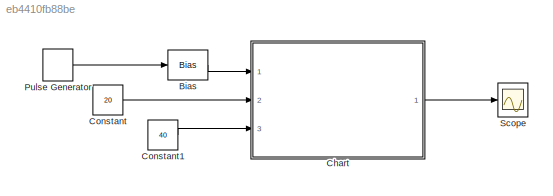
MODEL slx_eb4410fb88be
KIND model
CONFIG AbsTol = auto
CONFIG EnableMultiTasking = on
CONFIG FixedStep = 1e-3
CONFIG MaxStep = auto
CONFIG MinStep = auto
CONFIG RelTol = 1e-3
CONFIG SampleTimeConstraint = Unconstrained
CONFIG Solver = FixedStepAuto
CONFIG SolverName = FixedStepAuto
CONFIG StartTime = 0.0
CONFIG StopTime = 16
BLOCK [Bias] Bias
  Bias = 60
  SaturateOnIntegerOverflow = off
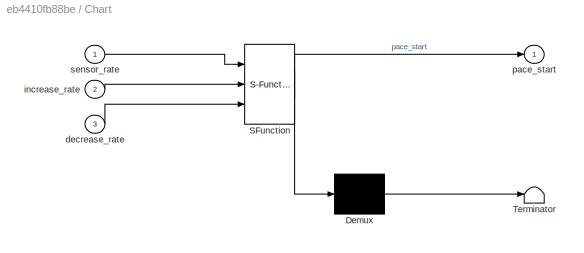
BLOCK [SubSystem] Chart
  ErrorFcn = Stateflow.Translate.translate
  PermitHierarchicalResolution = ExplicitOnly
  Ports = [3, 1]
  RequestExecContextInheritance = off
  SFBlockType = Chart
  TreatAsAtomicUnit = on
BLOCK [Demux] Chart/ Demux 
  Outputs = 1
  Ports = [1, 1]
BLOCK [S-Function] Chart/ SFunction 
  EnableBusSupport = on
  FunctionName = sf_sfun
  PortCounts = [3 2]
  Ports = [3, 2]
  SFcnIsStateOwnerBlock = off
  SFunctionDeploymentMode = off
  Tag = Stateflow S-Function 3
BLOCK [Terminator] Chart/ Terminator 
BLOCK [Inport] Chart/decrease_rate
  Port = 3
BLOCK [Inport] Chart/increase_rate
  Port = 2
BLOCK [Outport] Chart/pace_start
BLOCK [Inport] Chart/sensor_rate
BLOCK [Constant] Constant
  Value = 20
BLOCK [Constant] Constant1
  Value = 40
BLOCK [DiscretePulseGenerator] Pulse Generator
  Amplitude = 60
  Period = 16
  Ports = [0, 1]
  PulseType = Time based
  PulseWidth = 50
BLOCK [Scope] Scope
  Floating = off
  NumInputPorts = 1
  Ports = [1]
  ScopeSpecificationString = Simulink.scopes.TimeScopeBlockCfg('CurrentConfiguration', extmgr.ConfigurationSet(extmgr.Configuration('Core','General UI',true),extmgr.Configuration('Core','Source UI',true),extmgr.Configuration('Sources','WiredSimulink',true),extmgr.Configuration('Visuals','Time Domain',true,'SerializedDisplays',{struct('MinYLimReal','0.57459','MaxYLimReal','0.97597','YLabelReal','','MinYLimMag','0.57459','MaxYL...<+1391ch>
LINE Bias:1 -> Chart:1
LINE Chart:1 -> Scope:1
LINE Constant1:1 -> Chart:3
LINE Constant:1 -> Chart:2
LINE Pulse Generator:1 -> Bias:1
CHART Chart states=3 transitions=16
  STATE_LABEL 'INITIAL\nentry:\ncurrent_LRL = sensor_rate;'
  STATE_LABEL 'UPDATE_RATE\non after(1,msec):\npace_start = false;\nexit:\nt = elapsed(sec)'
  STATE_LABEL 'PACE\nentry:\npace_start = true;\n'
CHART  states=0 transitions=0
